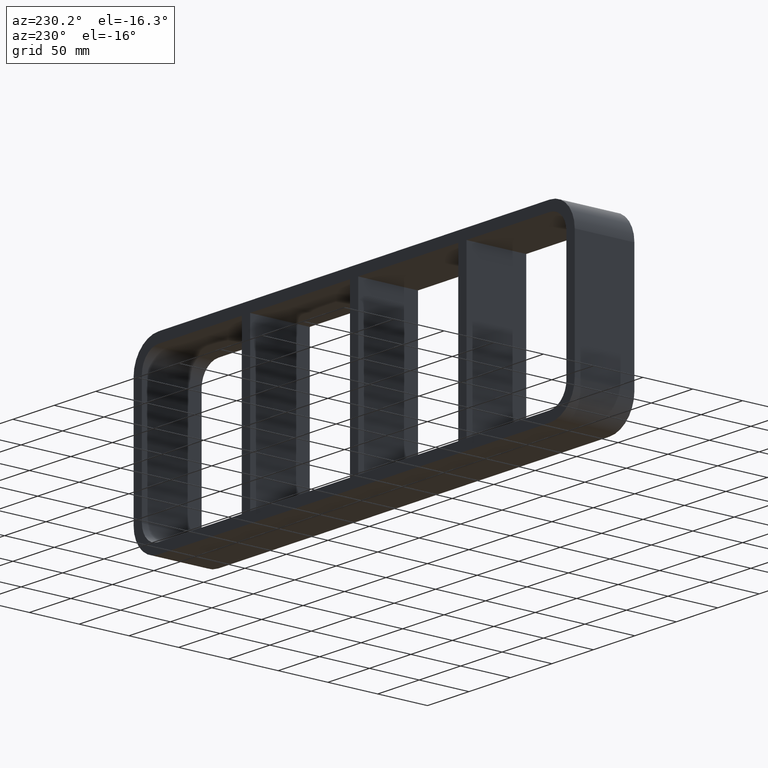
[diagram: clean part render]
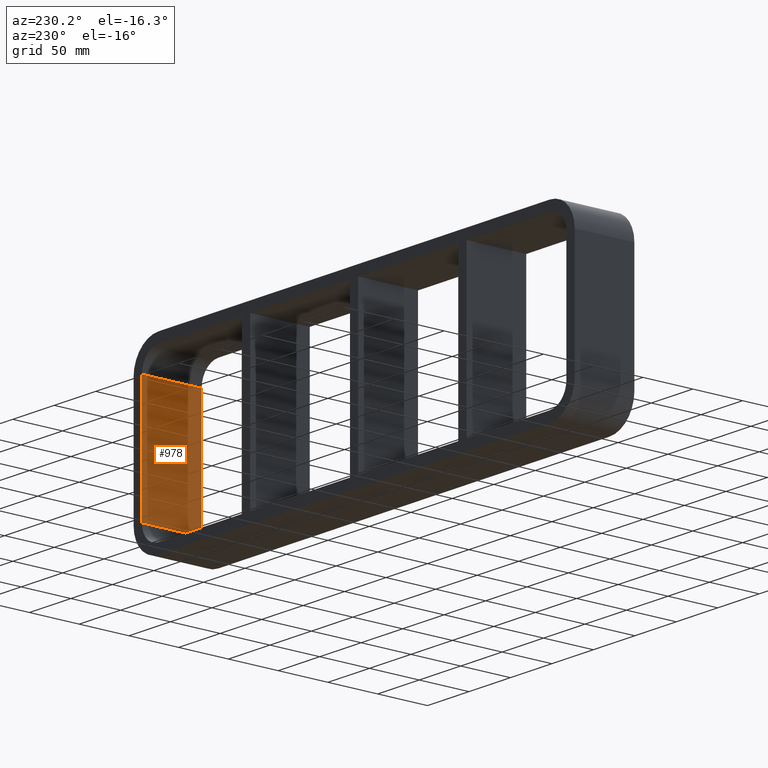
[diagram: same view with one face highlighted and labeled with its STEP entity id]
A machine part, auxiliary view. The second image highlights one B-rep face of the part: STEP entity #978.
In plain terms, the highlighted planar face has unit normal (1, 0, 0).
Its self-contained STEP definition (entity closure, byte-faithful):
#670=CARTESIAN_POINT('',(256.00000000000006,-3.0,59.750000000000014));
#671=VERTEX_POINT('',#670);
#679=CARTESIAN_POINT('',(256.00000000000006,-3.0,-59.750000000000014));
#680=VERTEX_POINT('',#679);
#681=CARTESIAN_POINT('',(256.00000000000006,-3.0,59.750000000000014));
#682=DIRECTION('',(0.0,0.0,-1.0));
#683=VECTOR('',#682,119.50000000000003);
#684=LINE('',#681,#683);
#685=EDGE_CURVE('',#671,#680,#684,.T.);
#901=CARTESIAN_POINT('',(256.00000000000006,57.0,59.750000000000014));
#902=VERTEX_POINT('',#901);
#910=CARTESIAN_POINT('',(256.00000000000006,57.0,59.750000000000014));
#911=DIRECTION('',(0.0,-1.0,0.0));
#912=VECTOR('',#911,60.0);
#913=LINE('',#910,#912);
#914=EDGE_CURVE('',#902,#671,#913,.T.);
#942=CARTESIAN_POINT('',(256.00000000000006,57.0,-59.750000000000014));
#943=VERTEX_POINT('',#942);
#953=CARTESIAN_POINT('',(256.00000000000006,-3.0,-59.750000000000014));
#954=DIRECTION('',(0.0,1.0,0.0));
#955=VECTOR('',#954,60.0);
#956=LINE('',#953,#955);
#957=EDGE_CURVE('',#680,#943,#956,.T.);
#962=CARTESIAN_POINT('',(256.00000000000006,0.0,79.750000000000014));
#963=DIRECTION('',(1.0,0.0,0.0));
#964=DIRECTION('',(0.0,0.0,-1.0));
#965=AXIS2_PLACEMENT_3D('',#962,#963,#964);
#966=PLANE('',#965);
#967=ORIENTED_EDGE('',*,*,#914,.F.);
#968=CARTESIAN_POINT('',(256.00000000000006,57.0,-59.750000000000021));
#969=DIRECTION('',(0.0,0.0,1.0));
#970=VECTOR('',#969,119.50000000000003);
#971=LINE('',#968,#970);
#972=EDGE_CURVE('',#943,#902,#971,.T.);
#973=ORIENTED_EDGE('',*,*,#972,.F.);
#974=ORIENTED_EDGE('',*,*,#957,.F.);
#975=ORIENTED_EDGE('',*,*,#685,.F.);
#976=EDGE_LOOP('',(#967,#973,#974,#975));
#977=FACE_OUTER_BOUND('',#976,.T.);
#978=ADVANCED_FACE('',(#977),#966,.F.);